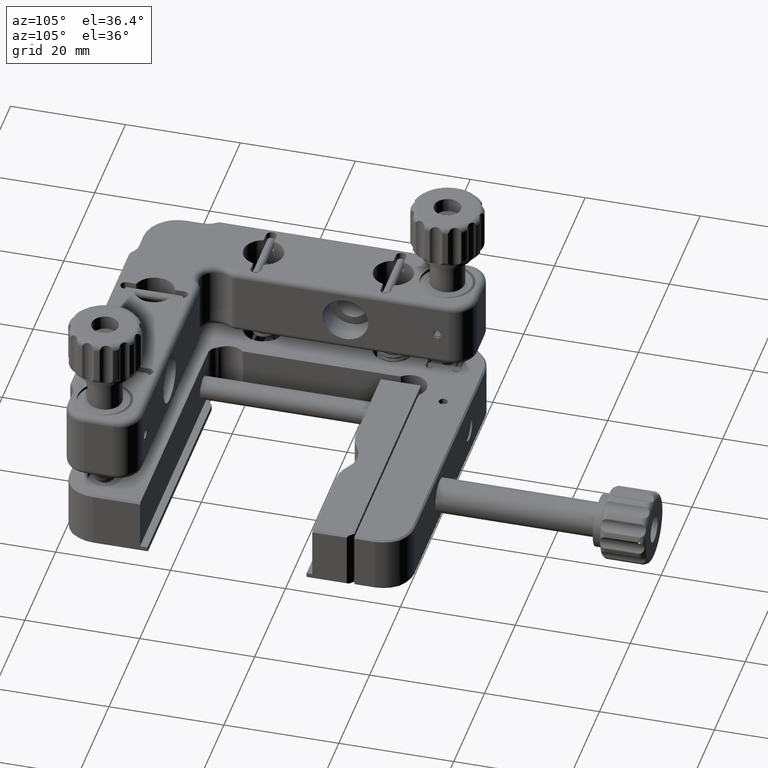
[diagram: clean part render]
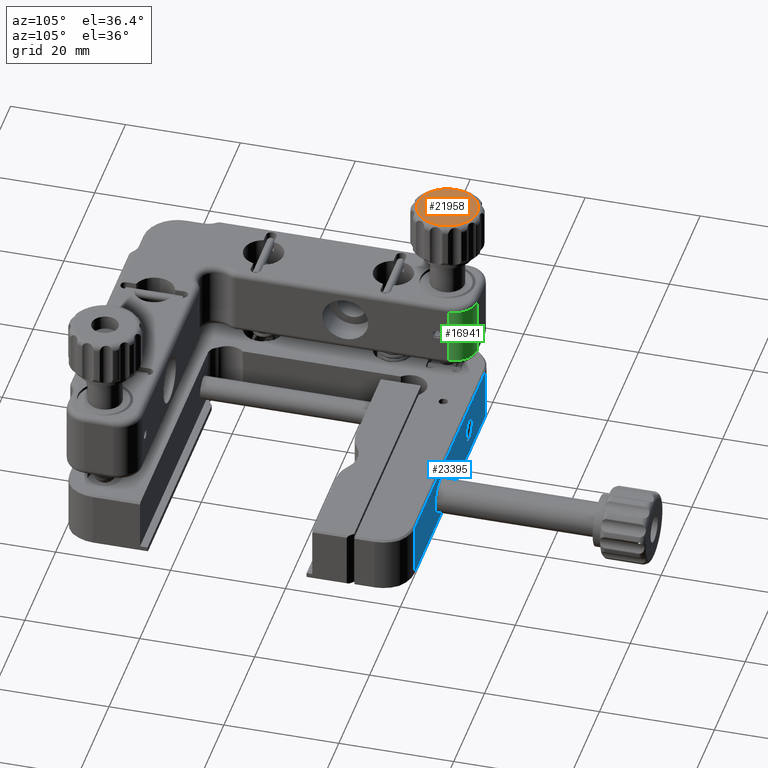
[diagram: same view with three faces highlighted in distinct colors, each labeled with its STEP entity id]
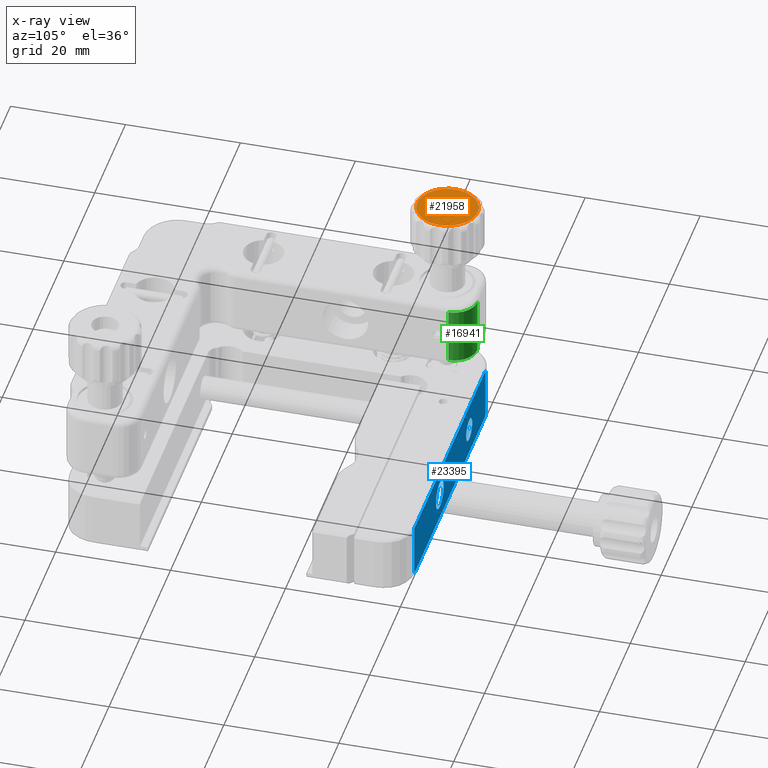
[diagram: x-ray of the same camera — body ghosted, the three highlighted faces saturated]
A machine part, auxiliary view with three faces highlighted in distinct colors.
The next image is the same camera in x-ray (body ghosted, the three faces saturated) — at least one of them is partly hidden behind the body in this view.
Their STEP definitions:

[orange] entity #21958 — the highlighted planar face has unit normal (-0, 0, 1).
#962 = CARTESIAN_POINT ( 'NONE',  ( 1.853170966595478530, 52.96431138805890271, 21.53787368523703805 ) ) ;
#1681 = FACE_BOUND ( 'NONE', #19147, .T. ) ;
#1917 = DIRECTION ( 'NONE',  ( -1.991352757858081913E-16, 2.073283242098440212E-16, 1.000000000000000000 ) ) ;
#2005 = ORIENTED_EDGE ( 'NONE', *, *, #17995, .F. ) ;
#3011 = EDGE_LOOP ( 'NONE', ( #7761 ) ) ;
#3085 = AXIS2_PLACEMENT_3D ( 'NONE', #3435, #18758, #16917 ) ;
#3435 = CARTESIAN_POINT ( 'NONE',  ( 7.000000000000007105, 54.00000000000001421, 21.53787368523703805 ) ) ;
#4966 = AXIS2_PLACEMENT_3D ( 'NONE', #6681, #20040, #8653 ) ;
#4995 = VERTEX_POINT ( 'NONE', #19965 ) ;
#6681 = CARTESIAN_POINT ( 'NONE',  ( 7.000000000000007105, 54.00000000000001421, 21.53787368523703805 ) ) ;
#7761 = ORIENTED_EDGE ( 'NONE', *, *, #15759, .T. ) ;
#8653 = DIRECTION ( 'NONE',  ( -0.9803483873151430661, -0.1972740213221149397, 0.000000000000000000 ) ) ;
#15759 = EDGE_CURVE ( 'NONE', #20205, #20205, #24202, .T. ) ;
#16917 = DIRECTION ( 'NONE',  ( -0.9803483873151432881, -0.1972740213221140515, 0.000000000000000000 ) ) ;
#17995 = EDGE_CURVE ( 'NONE', #4995, #4995, #21896, .T. ) ;
#18708 = PLANE ( 'NONE',  #22912 ) ;
#18758 = DIRECTION ( 'NONE',  ( -1.991352757858112481E-16, 2.073283242098434296E-16, 1.000000000000000000 ) ) ;
#19147 = EDGE_LOOP ( 'NONE', ( #2005 ) ) ;
#19965 = CARTESIAN_POINT ( 'NONE',  ( 4.696181289809407744, 53.53640604989304563, 21.53787368523703805 ) ) ;
#20040 = DIRECTION ( 'NONE',  ( -1.991352757858112481E-16, 2.073283242098434296E-16, 1.000000000000000000 ) ) ;
#20071 = FACE_OUTER_BOUND ( 'NONE', #3011, .T. ) ;
#20205 = VERTEX_POINT ( 'NONE', #962 ) ;
#21896 = CIRCLE ( 'NONE', #3085, 2.350000000000012523 ) ;
#21920 = DIRECTION ( 'NONE',  ( -0.9803483873151430661, -0.1972740213221146344, -1.543214542233222580E-16 ) ) ;
#21958 = ADVANCED_FACE ( 'NONE', ( #1681, #20071 ), #18708, .T. ) ;
#22274 = CARTESIAN_POINT ( 'NONE',  ( 7.000000000000007105, 54.00000000000001421, 21.53787368523703805 ) ) ;
#22912 = AXIS2_PLACEMENT_3D ( 'NONE', #22274, #1917, #21920 ) ;
#24202 = CIRCLE ( 'NONE', #4966, 5.250000000000027534 ) ;

[blue] entity #23395 — the highlighted planar face has unit normal (-0, -1, -0).
#184 = ORIENTED_EDGE ( 'NONE', *, *, #12258, .T. ) ;
#372 = VERTEX_POINT ( 'NONE', #13248 ) ;
#516 = VERTEX_POINT ( 'NONE', #17676 ) ;
#1925 = DIRECTION ( 'NONE',  ( 1.156482317317879367E-16, 1.000000000000000000, 7.049016235977086995E-18 ) ) ;
#2301 = EDGE_LOOP ( 'NONE', ( #3479 ) ) ;
#2678 = VECTOR ( 'NONE', #15374, 1000.000000000000000 ) ;
#3163 = ORIENTED_EDGE ( 'NONE', *, *, #20894, .T. ) ;
#3429 = DIRECTION ( 'NONE',  ( 1.000000000000000000, -1.156482317317863836E-16, 1.387778780781445676E-17 ) ) ;
#3444 = CIRCLE ( 'NONE', #8548, 2.500000000000002220 ) ;
#3479 = ORIENTED_EDGE ( 'NONE', *, *, #16985, .F. ) ;
#3966 = VERTEX_POINT ( 'NONE', #8288 ) ;
#4438 = ORIENTED_EDGE ( 'NONE', *, *, #16249, .T. ) ;
#4559 = LINE ( 'NONE', #19516, #7341 ) ;
#5627 = DIRECTION ( 'NONE',  ( -1.156482317317863836E-16, -1.000000000000000000, -7.049016235977086995E-18 ) ) ;
#5669 = CARTESIAN_POINT ( 'NONE',  ( 8.485281374238587304, 60.99999999999985789, -10.29999999999998295 ) ) ;
#5918 = EDGE_CURVE ( 'NONE', #372, #372, #22234, .T. ) ;
#6586 = CARTESIAN_POINT ( 'NONE',  ( 19.00000000000001066, 60.99999999999985789, -15.00000000000000355 ) ) ;
#6647 = DIRECTION ( 'NONE',  ( -1.000000000000000000, 1.156482317317863836E-16, -1.387778780781445676E-17 ) ) ;
#7231 = FACE_BOUND ( 'NONE', #2301, .T. ) ;
#7341 = VECTOR ( 'NONE', #22723, 1000.000000000000000 ) ;
#7483 = FACE_OUTER_BOUND ( 'NONE', #10154, .T. ) ;
#7894 = LINE ( 'NONE', #13787, #2678 ) ;
#8288 = CARTESIAN_POINT ( 'NONE',  ( 8.485281374238587304, 60.99999999999985789, -19.70000000000002061 ) ) ;
#8406 = CARTESIAN_POINT ( 'NONE',  ( 54.51471862576142513, 60.99999999999985079, -10.29999999999998295 ) ) ;
#8548 = AXIS2_PLACEMENT_3D ( 'NONE', #18716, #1925, #22162 ) ;
#9322 = FACE_BOUND ( 'NONE', #15536, .T. ) ;
#10154 = EDGE_LOOP ( 'NONE', ( #3163, #4438, #184, #11462 ) ) ;
#11462 = ORIENTED_EDGE ( 'NONE', *, *, #14908, .T. ) ;
#11674 = AXIS2_PLACEMENT_3D ( 'NONE', #6586, #15792, #21675 ) ;
#11855 = CARTESIAN_POINT ( 'NONE',  ( 8.485281374238587304, 60.99999999999985789, -10.00000000000000178 ) ) ;
#11976 = LINE ( 'NONE', #11855, #17008 ) ;
#12258 = EDGE_CURVE ( 'NONE', #15631, #516, #4559, .T. ) ;
#12612 = CARTESIAN_POINT ( 'NONE',  ( 35.60000000000000853, 60.99999999999985079, -15.00000000000002132 ) ) ;
#13248 = CARTESIAN_POINT ( 'NONE',  ( 17.00000000000001066, 60.99999999999985789, -15.00000000000000355 ) ) ;
#13779 = VERTEX_POINT ( 'NONE', #5669 ) ;
#13787 = CARTESIAN_POINT ( 'NONE',  ( 54.51471862576141092, 60.99999999999985079, -10.29999999999998295 ) ) ;
#14336 = VERTEX_POINT ( 'NONE', #12612 ) ;
#14720 = CARTESIAN_POINT ( 'NONE',  ( 1.000000000000009548, 60.99999999999985789, -10.00000000000000178 ) ) ;
#14908 = EDGE_CURVE ( 'NONE', #516, #3966, #23451, .T. ) ;
#14939 = ORIENTED_EDGE ( 'NONE', *, *, #5918, .F. ) ;
#15078 = PLANE ( 'NONE',  #16290 ) ;
#15239 = VECTOR ( 'NONE', #6647, 1000.000000000000000 ) ;
#15374 = DIRECTION ( 'NONE',  ( 1.000000000000000000, -1.156482317317863836E-16, 1.387778780781445676E-17 ) ) ;
#15536 = EDGE_LOOP ( 'NONE', ( #14939 ) ) ;
#15631 = VERTEX_POINT ( 'NONE', #8406 ) ;
#15792 = DIRECTION ( 'NONE',  ( 1.156482317317879367E-16, 1.000000000000000000, 7.049016235977086995E-18 ) ) ;
#16249 = EDGE_CURVE ( 'NONE', #13779, #15631, #7894, .T. ) ;
#16290 = AXIS2_PLACEMENT_3D ( 'NONE', #14720, #5627, #3429 ) ;
#16985 = EDGE_CURVE ( 'NONE', #14336, #14336, #3444, .T. ) ;
#17008 = VECTOR ( 'NONE', #17364, 1000.000000000000000 ) ;
#17364 = DIRECTION ( 'NONE',  ( -1.387778780781444135E-17, -7.049016235973105712E-18, 1.000000000000000000 ) ) ;
#17676 = CARTESIAN_POINT ( 'NONE',  ( 54.51471862576142513, 60.99999999999985079, -19.70000000000002061 ) ) ;
#18716 = CARTESIAN_POINT ( 'NONE',  ( 38.10000000000000853, 60.99999999999985079, -15.00000000000002132 ) ) ;
#19516 = CARTESIAN_POINT ( 'NONE',  ( 54.51471862576142513, 60.99999999999985079, -20.00000000000000000 ) ) ;
#19883 = CARTESIAN_POINT ( 'NONE',  ( 1.000000000000009548, 60.99999999999985789, -19.70000000000002061 ) ) ;
#20894 = EDGE_CURVE ( 'NONE', #3966, #13779, #11976, .T. ) ;
#21675 = DIRECTION ( 'NONE',  ( -1.000000000000000000, 0.000000000000000000, 0.000000000000000000 ) ) ;
#22162 = DIRECTION ( 'NONE',  ( -1.000000000000000000, 0.000000000000000000, 0.000000000000000000 ) ) ;
#22234 = CIRCLE ( 'NONE', #11674, 1.999999999999998224 ) ;
#22723 = DIRECTION ( 'NONE',  ( 1.387778780781444135E-17, 7.049016235973105712E-18, -1.000000000000000000 ) ) ;
#23395 = ADVANCED_FACE ( 'NONE', ( #9322, #7231, #7483 ), #15078, .F. ) ;
#23451 = LINE ( 'NONE', #19883, #15239 ) ;

[green] entity #16941 — the highlighted cylindrical surface (edge-blend (fillet) strip) has radius 4 mm, axis along (0, -0, 1).
#41 = ORIENTED_EDGE ( 'NONE', *, *, #12661, .T. ) ;
#95 = FACE_OUTER_BOUND ( 'NONE', #8342, .T. ) ;
#2168 = AXIS2_PLACEMENT_3D ( 'NONE', #21207, #11887, #9685 ) ;
#2864 = ORIENTED_EDGE ( 'NONE', *, *, #9013, .T. ) ;
#4798 = CARTESIAN_POINT ( 'NONE',  ( 14.00000000000007283, 55.99999999999999289, 5.000000000000017764 ) ) ;
#5649 = CARTESIAN_POINT ( 'NONE',  ( 10.00000000000003730, 60.00000000000000000, 5.000000000000017764 ) ) ;
#7369 = CARTESIAN_POINT ( 'NONE',  ( 10.00000000000003730, 60.00000000000000000, -6.000000000000036415 ) ) ;
#7603 = CARTESIAN_POINT ( 'NONE',  ( 14.00000000000007283, 55.99999999999999289, -5.000000000000018652 ) ) ;
#7991 = VERTEX_POINT ( 'NONE', #5649 ) ;
#8146 = VECTOR ( 'NONE', #16804, 1000.000000000000000 ) ;
#8342 = EDGE_LOOP ( 'NONE', ( #41, #2864, #21677, #20634 ) ) ;
#8803 = CARTESIAN_POINT ( 'NONE',  ( 10.00000000000003730, 55.99999999999999289, 5.000000000000017764 ) ) ;
#9013 = EDGE_CURVE ( 'NONE', #7991, #14222, #22493, .T. ) ;
#9286 = DIRECTION ( 'NONE',  ( -1.000000000000000000, 0.000000000000000000, -4.336808689941994563E-16 ) ) ;
#9290 = DIRECTION ( 'NONE',  ( 4.440892098500626162E-16, -3.389637024493713281E-31, 1.000000000000000000 ) ) ;
#9685 = DIRECTION ( 'NONE',  ( -1.000000000000000000, 0.000000000000000000, -4.336808689941994563E-16 ) ) ;
#10319 = VERTEX_POINT ( 'NONE', #7603 ) ;
#10497 = EDGE_CURVE ( 'NONE', #10319, #11227, #23310, .T. ) ;
#10888 = AXIS2_PLACEMENT_3D ( 'NONE', #16637, #9290, #16760 ) ;
#10961 = LINE ( 'NONE', #14999, #13618 ) ;
#11227 = VERTEX_POINT ( 'NONE', #20057 ) ;
#11887 = DIRECTION ( 'NONE',  ( 4.440892098500626162E-16, -3.389637024493713281E-31, 1.000000000000000000 ) ) ;
#11935 = EDGE_CURVE ( 'NONE', #10319, #14222, #10961, .T. ) ;
#12661 = EDGE_CURVE ( 'NONE', #11227, #7991, #14733, .T. ) ;
#13618 = VECTOR ( 'NONE', #15244, 1000.000000000000000 ) ;
#14222 = VERTEX_POINT ( 'NONE', #4798 ) ;
#14733 = LINE ( 'NONE', #7369, #8146 ) ;
#14999 = CARTESIAN_POINT ( 'NONE',  ( 14.00000000000007283, 55.99999999999999289, -6.000000000000036415 ) ) ;
#15244 = DIRECTION ( 'NONE',  ( 4.440892098500626162E-16, -3.389637024493713281E-31, 1.000000000000000000 ) ) ;
#16637 = CARTESIAN_POINT ( 'NONE',  ( 10.00000000000003730, 55.99999999999999289, -6.000000000000036415 ) ) ;
#16760 = DIRECTION ( 'NONE',  ( 1.000000000000000000, 0.000000000000000000, 4.336808689941994563E-16 ) ) ;
#16804 = DIRECTION ( 'NONE',  ( 4.440892098500626162E-16, -3.389637024493713281E-31, 1.000000000000000000 ) ) ;
#16941 = ADVANCED_FACE ( 'NONE', ( #95 ), #21927, .T. ) ;
#20057 = CARTESIAN_POINT ( 'NONE',  ( 10.00000000000003730, 60.00000000000000000, -5.000000000000018652 ) ) ;
#20634 = ORIENTED_EDGE ( 'NONE', *, *, #10497, .T. ) ;
#21207 = CARTESIAN_POINT ( 'NONE',  ( 10.00000000000003730, 55.99999999999999289, -5.000000000000018652 ) ) ;
#21677 = ORIENTED_EDGE ( 'NONE', *, *, #11935, .F. ) ;
#21927 = CYLINDRICAL_SURFACE ( 'NONE', #10888, 4.000000000000021316 ) ;
#22493 = CIRCLE ( 'NONE', #23330, 4.000000000000021316 ) ;
#23310 = CIRCLE ( 'NONE', #2168, 4.000000000000021316 ) ;
#23330 = AXIS2_PLACEMENT_3D ( 'NONE', #8803, #23990, #9286 ) ;
#23990 = DIRECTION ( 'NONE',  ( -4.440892098500626162E-16, 3.389637024493713281E-31, -1.000000000000000000 ) ) ;